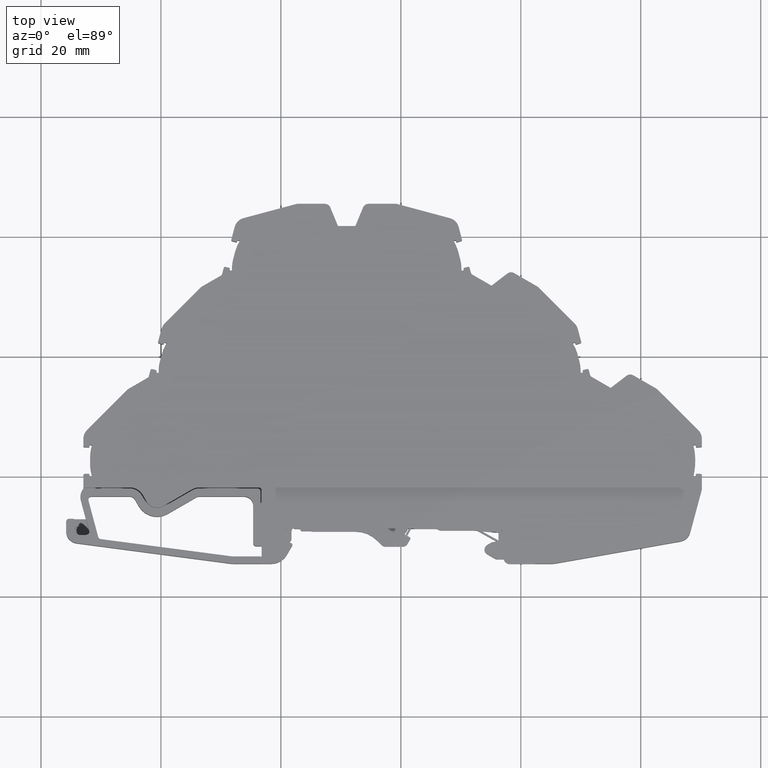
[diagram: clean part render]
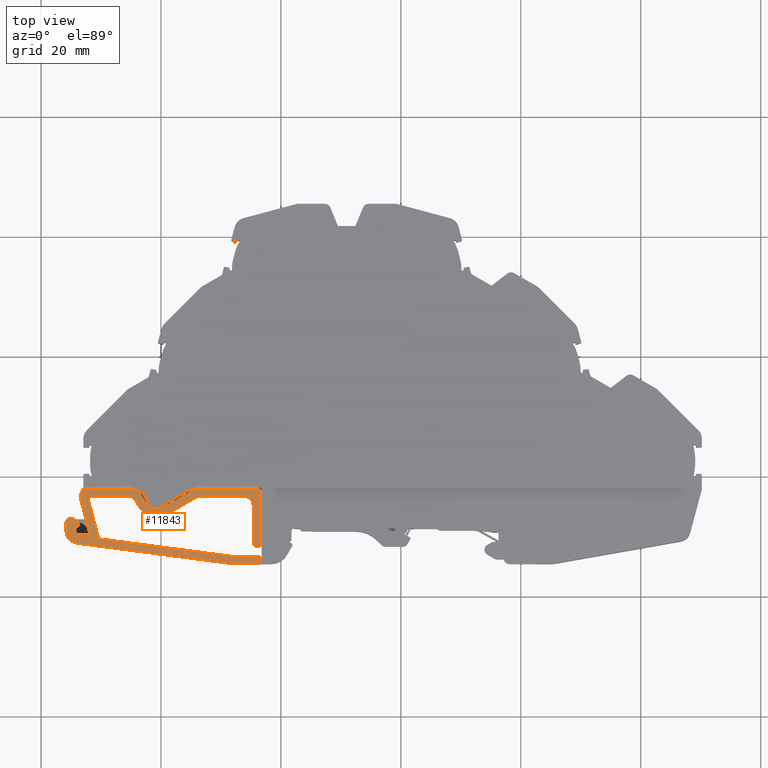
[diagram: same view with one face highlighted and labeled with its STEP entity id]
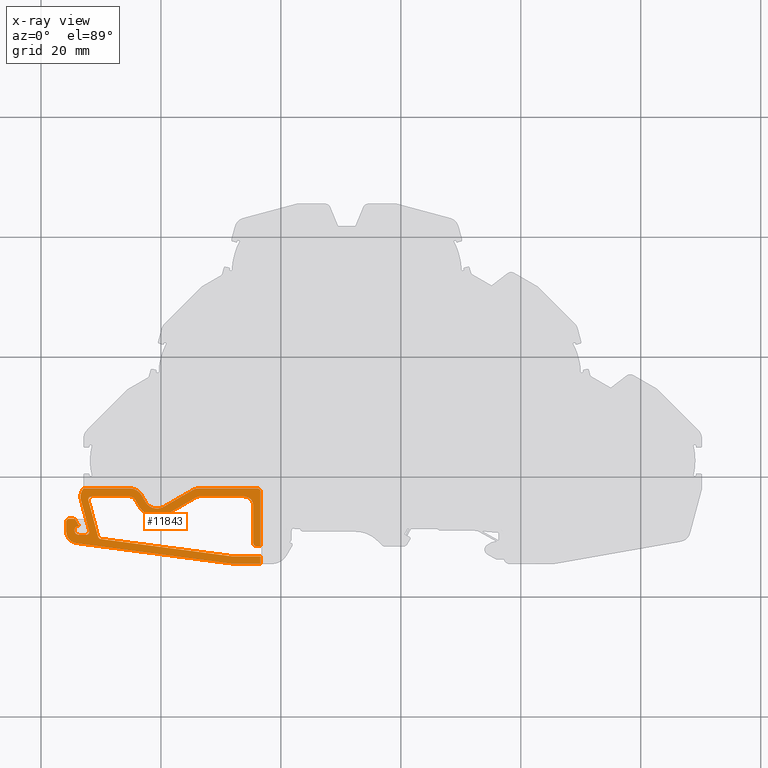
[diagram: x-ray of the same camera — body ghosted, the highlighted face saturated]
A machine part, top view. The second image highlights one B-rep face of the part: STEP entity #11843.
The next image is the same camera in x-ray: the body ghosted, the highlighted face saturated — about 0% of this face is hidden behind the body in this view.
In plain terms, the highlighted planar face has unit normal (0, 0, 1).
Its self-contained STEP definition (entity closure, byte-faithful):
#86 = AXIS2_PLACEMENT_3D ( 'NONE', #25047, #25037, #25041 ) ;
#3373 = EDGE_CURVE ( 'NONE', #7278, #7288, #14794, .T. ) ;
#3442 = EDGE_CURVE ( 'NONE', #7291, #7259, #14851, .T. ) ;
#6288 = EDGE_LOOP ( 'NONE', ( #13016, #6610, #6559, #6592, #6616, #6649, #6597, #6578, #6582, #6585, #6579, #6668, #6641, #6558, #6604, #6576, #6628, #6584, #6581, #6586, #6612, #6568, #6562, #6667, #6573, #6598, #6569, #6596, #6574, #6557, #6577, #6563, #6561, #6565, #6570, #6606, #6600, #6607, #6603, #6664, #6608, #6590, #6587 ) ) ;
#6557 = ORIENTED_EDGE ( 'NONE', *, *, #11028, .T. ) ;
#6558 = ORIENTED_EDGE ( 'NONE', *, *, #10947, .F. ) ;
#6559 = ORIENTED_EDGE ( 'NONE', *, *, #10971, .T. ) ;
#6561 = ORIENTED_EDGE ( 'NONE', *, *, #11039, .T. ) ;
#6562 = ORIENTED_EDGE ( 'NONE', *, *, #11052, .F. ) ;
#6563 = ORIENTED_EDGE ( 'NONE', *, *, #11011, .T. ) ;
#6565 = ORIENTED_EDGE ( 'NONE', *, *, #3373, .T. ) ;
#6568 = ORIENTED_EDGE ( 'NONE', *, *, #11058, .T. ) ;
#6569 = ORIENTED_EDGE ( 'NONE', *, *, #11047, .T. ) ;
#6570 = ORIENTED_EDGE ( 'NONE', *, *, #11008, .T. ) ;
#6573 = ORIENTED_EDGE ( 'NONE', *, *, #11044, .T. ) ;
#6574 = ORIENTED_EDGE ( 'NONE', *, *, #11041, .F. ) ;
#6576 = ORIENTED_EDGE ( 'NONE', *, *, #10948, .T. ) ;
#6577 = ORIENTED_EDGE ( 'NONE', *, *, #11042, .T. ) ;
#6578 = ORIENTED_EDGE ( 'NONE', *, *, #10982, .F. ) ;
#6579 = ORIENTED_EDGE ( 'NONE', *, *, #10965, .F. ) ;
#6581 = ORIENTED_EDGE ( 'NONE', *, *, #10998, .F. ) ;
#6582 = ORIENTED_EDGE ( 'NONE', *, *, #10941, .T. ) ;
#6584 = ORIENTED_EDGE ( 'NONE', *, *, #10972, .F. ) ;
#6585 = ORIENTED_EDGE ( 'NONE', *, *, #10939, .T. ) ;
#6586 = ORIENTED_EDGE ( 'NONE', *, *, #10937, .T. ) ;
#6587 = ORIENTED_EDGE ( 'NONE', *, *, #11021, .T. ) ;
#6590 = ORIENTED_EDGE ( 'NONE', *, *, #11033, .T. ) ;
#6592 = ORIENTED_EDGE ( 'NONE', *, *, #10976, .T. ) ;
#6596 = ORIENTED_EDGE ( 'NONE', *, *, #11054, .T. ) ;
#6597 = ORIENTED_EDGE ( 'NONE', *, *, #10944, .F. ) ;
#6598 = ORIENTED_EDGE ( 'NONE', *, *, #11004, .T. ) ;
#6600 = ORIENTED_EDGE ( 'NONE', *, *, #11031, .F. ) ;
#6603 = ORIENTED_EDGE ( 'NONE', *, *, #11009, .F. ) ;
#6604 = ORIENTED_EDGE ( 'NONE', *, *, #10981, .F. ) ;
#6606 = ORIENTED_EDGE ( 'NONE', *, *, #3442, .F. ) ;
#6607 = ORIENTED_EDGE ( 'NONE', *, *, #11016, .T. ) ;
#6608 = ORIENTED_EDGE ( 'NONE', *, *, #11045, .T. ) ;
#6610 = ORIENTED_EDGE ( 'NONE', *, *, #10969, .T. ) ;
#6612 = ORIENTED_EDGE ( 'NONE', *, *, #11059, .F. ) ;
#6616 = ORIENTED_EDGE ( 'NONE', *, *, #10961, .T. ) ;
#6628 = ORIENTED_EDGE ( 'NONE', *, *, #10962, .F. ) ;
#6641 = ORIENTED_EDGE ( 'NONE', *, *, #10946, .F. ) ;
#6649 = ORIENTED_EDGE ( 'NONE', *, *, #10950, .F. ) ;
#6664 = ORIENTED_EDGE ( 'NONE', *, *, #11006, .T. ) ;
#6667 = ORIENTED_EDGE ( 'NONE', *, *, #11017, .F. ) ;
#6668 = ORIENTED_EDGE ( 'NONE', *, *, #10955, .F. ) ;
#7259 = VERTEX_POINT ( 'NONE', #17937 ) ;
#7278 = VERTEX_POINT ( 'NONE', #17997 ) ;
#7288 = VERTEX_POINT ( 'NONE', #18036 ) ;
#7291 = VERTEX_POINT ( 'NONE', #18021 ) ;
#7775 = VERTEX_POINT ( 'NONE', #18549 ) ;
#7836 = VERTEX_POINT ( 'NONE', #18523 ) ;
#7838 = VERTEX_POINT ( 'NONE', #18623 ) ;
#7840 = VERTEX_POINT ( 'NONE', #18571 ) ;
#7841 = VERTEX_POINT ( 'NONE', #18616 ) ;
#7843 = VERTEX_POINT ( 'NONE', #18588 ) ;
#7849 = VERTEX_POINT ( 'NONE', #18606 ) ;
#7851 = VERTEX_POINT ( 'NONE', #18573 ) ;
#7853 = VERTEX_POINT ( 'NONE', #18613 ) ;
#7855 = VERTEX_POINT ( 'NONE', #18591 ) ;
#7857 = VERTEX_POINT ( 'NONE', #18603 ) ;
#7858 = VERTEX_POINT ( 'NONE', #18632 ) ;
#7859 = VERTEX_POINT ( 'NONE', #18601 ) ;
#7860 = VERTEX_POINT ( 'NONE', #18630 ) ;
#7861 = VERTEX_POINT ( 'NONE', #18582 ) ;
#7862 = VERTEX_POINT ( 'NONE', #18592 ) ;
#7863 = VERTEX_POINT ( 'NONE', #18599 ) ;
#7864 = VERTEX_POINT ( 'NONE', #18574 ) ;
#7866 = VERTEX_POINT ( 'NONE', #18609 ) ;
#7867 = VERTEX_POINT ( 'NONE', #18605 ) ;
#7869 = VERTEX_POINT ( 'NONE', #18620 ) ;
#7870 = VERTEX_POINT ( 'NONE', #18633 ) ;
#7871 = VERTEX_POINT ( 'NONE', #18634 ) ;
#7872 = VERTEX_POINT ( 'NONE', #18611 ) ;
#7873 = VERTEX_POINT ( 'NONE', #18584 ) ;
#7874 = VERTEX_POINT ( 'NONE', #18614 ) ;
#7880 = VERTEX_POINT ( 'NONE', #18617 ) ;
#7881 = VERTEX_POINT ( 'NONE', #18585 ) ;
#7883 = VERTEX_POINT ( 'NONE', #18594 ) ;
#7885 = VERTEX_POINT ( 'NONE', #18587 ) ;
#7887 = VERTEX_POINT ( 'NONE', #18622 ) ;
#7888 = VERTEX_POINT ( 'NONE', #18624 ) ;
#7892 = VERTEX_POINT ( 'NONE', #18580 ) ;
#7895 = VERTEX_POINT ( 'NONE', #18577 ) ;
#7896 = VERTEX_POINT ( 'NONE', #18578 ) ;
#7898 = VERTEX_POINT ( 'NONE', #18600 ) ;
#7900 = VERTEX_POINT ( 'NONE', #18596 ) ;
#7901 = VERTEX_POINT ( 'NONE', #18598 ) ;
#7950 = VERTEX_POINT ( 'NONE', #18694 ) ;
#10937 = EDGE_CURVE ( 'NONE', #7869, #7895, #20622, .T. ) ;
#10939 = EDGE_CURVE ( 'NONE', #7873, #7841, #20586, .T. ) ;
#10941 = EDGE_CURVE ( 'NONE', #7849, #7873, #21947, .T. ) ;
#10944 = EDGE_CURVE ( 'NONE', #7853, #7892, #21996, .T. ) ;
#10946 = EDGE_CURVE ( 'NONE', #7775, #7867, #21977, .T. ) ;
#10947 = EDGE_CURVE ( 'NONE', #7898, #7775, #20580, .T. ) ;
#10948 = EDGE_CURVE ( 'NONE', #7881, #7836, #20601, .T. ) ;
#10950 = EDGE_CURVE ( 'NONE', #7892, #7874, #22002, .T. ) ;
#10955 = EDGE_CURVE ( 'NONE', #7867, #7862, #20596, .T. ) ;
#10961 = EDGE_CURVE ( 'NONE', #7871, #7874, #22045, .T. ) ;
#10962 = EDGE_CURVE ( 'NONE', #7861, #7836, #22041, .T. ) ;
#10965 = EDGE_CURVE ( 'NONE', #7862, #7841, #22052, .T. ) ;
#10969 = EDGE_CURVE ( 'NONE', #7857, #7858, #20690, .T. ) ;
#10971 = EDGE_CURVE ( 'NONE', #7858, #7838, #22024, .T. ) ;
#10972 = EDGE_CURVE ( 'NONE', #7901, #7861, #20691, .T. ) ;
#10976 = EDGE_CURVE ( 'NONE', #7838, #7871, #20646, .T. ) ;
#10980 = EDGE_CURVE ( 'NONE', #7900, #7857, #22094, .T. ) ;
#10981 = EDGE_CURVE ( 'NONE', #7881, #7898, #22091, .T. ) ;
#10982 = EDGE_CURVE ( 'NONE', #7849, #7853, #20671, .T. ) ;
#10998 = EDGE_CURVE ( 'NONE', #7869, #7901, #22141, .T. ) ;
#11004 = EDGE_CURVE ( 'NONE', #7880, #7888, #22176, .T. ) ;
#11006 = EDGE_CURVE ( 'NONE', #7860, #7887, #22186, .T. ) ;
#11008 = EDGE_CURVE ( 'NONE', #7288, #7259, #22179, .T. ) ;
#11009 = EDGE_CURVE ( 'NONE', #7860, #7851, #20754, .T. ) ;
#11011 = EDGE_CURVE ( 'NONE', #7883, #7855, #22166, .T. ) ;
#11016 = EDGE_CURVE ( 'NONE', #7896, #7851, #22219, .T. ) ;
#11017 = EDGE_CURVE ( 'NONE', #7872, #7885, #22217, .T. ) ;
#11021 = EDGE_CURVE ( 'NONE', #7950, #7900, #20723, .T. ) ;
#11028 = EDGE_CURVE ( 'NONE', #7863, #7859, #22203, .T. ) ;
#11031 = EDGE_CURVE ( 'NONE', #7896, #7291, #20746, .T. ) ;
#11033 = EDGE_CURVE ( 'NONE', #7840, #7950, #22272, .T. ) ;
#11039 = EDGE_CURVE ( 'NONE', #7855, #7278, #20750, .T. ) ;
#11041 = EDGE_CURVE ( 'NONE', #7863, #7864, #20748, .T. ) ;
#11042 = EDGE_CURVE ( 'NONE', #7859, #7883, #20758, .T. ) ;
#11044 = EDGE_CURVE ( 'NONE', #7872, #7880, #20767, .T. ) ;
#11045 = EDGE_CURVE ( 'NONE', #7887, #7840, #20765, .T. ) ;
#11047 = EDGE_CURVE ( 'NONE', #7888, #7870, #20806, .T. ) ;
#11052 = EDGE_CURVE ( 'NONE', #7885, #7843, #22293, .T. ) ;
#11054 = EDGE_CURVE ( 'NONE', #7870, #7864, #22309, .T. ) ;
#11058 = EDGE_CURVE ( 'NONE', #7866, #7843, #20821, .T. ) ;
#11059 = EDGE_CURVE ( 'NONE', #7866, #7895, #22298, .T. ) ;
#11843 = ADVANCED_FACE ( 'NONE', ( #25068 ), #25064, .T. ) ;
#13016 = ORIENTED_EDGE ( 'NONE', *, *, #10980, .T. ) ;
#14740 = AXIS2_PLACEMENT_3D ( 'NONE', #16004, #16002, #15963 ) ;
#14794 = CIRCLE ( 'NONE', #14740, 2.000006238983387300 ) ;
#14821 = AXIS2_PLACEMENT_3D ( 'NONE', #16171, #16158, #16146 ) ;
#14851 = CIRCLE ( 'NONE', #14821, 0.4999999906125374100 ) ;
#15963 = DIRECTION ( 'NONE',  ( 1.000000000000000000, 0.0000000000000000000, 0.0000000000000000000 ) ) ;
#16002 = DIRECTION ( 'NONE',  ( 0.0000000000000000000, 0.0000000000000000000, 1.000000000000000000 ) ) ;
#16004 = CARTESIAN_POINT ( 'NONE',  ( 208.5687325803994800, 16.63790005086045200, 5.864999999999995800 ) ) ;
#16146 = DIRECTION ( 'NONE',  ( 1.000000000000000000, 0.0000000000000000000, 0.0000000000000000000 ) ) ;
#16158 = DIRECTION ( 'NONE',  ( 0.0000000000000000000, 0.0000000000000000000, 1.000000000000000000 ) ) ;
#16171 = CARTESIAN_POINT ( 'NONE',  ( 207.5627173941364800, 10.73246764365942100, 5.864999999999994900 ) ) ;
#17937 = CARTESIAN_POINT ( 'NONE',  ( 208.0456837820039800, 10.86186416139761900, 5.864999999999994900 ) ) ;
#17997 = CARTESIAN_POINT ( 'NONE',  ( 206.5687263414161000, 16.63790005086045200, 5.864999999999995800 ) ) ;
#18021 = CARTESIAN_POINT ( 'NONE',  ( 208.0627173847490200, 10.73246764365942100, 5.864999999999994900 ) ) ;
#18036 = CARTESIAN_POINT ( 'NONE',  ( 206.6368599254679700, 16.12032063474665100, 5.864999999999994900 ) ) ;
#18523 = CARTESIAN_POINT ( 'NONE',  ( 221.0952826277055000, 13.75818265866324100, 5.864999999999994900 ) ) ;
#18549 = CARTESIAN_POINT ( 'NONE',  ( 214.8047422702764800, 16.65365054067099800, 5.864999999999994900 ) ) ;
#18571 = CARTESIAN_POINT ( 'NONE',  ( 205.3310860712125000, 12.93240346183782000, 5.864999999999994900 ) ) ;
#18573 = CARTESIAN_POINT ( 'NONE',  ( 206.3125102571135000, 10.23246796505232000, 5.864999999999994900 ) ) ;
#18574 = CARTESIAN_POINT ( 'NONE',  ( 220.4452670665749800, 14.88401223435410100, 5.864999999999994900 ) ) ;
#18577 = CARTESIAN_POINT ( 'NONE',  ( 235.3775560752949900, 15.15365075230115200, 5.864999999999994900 ) ) ;
#18578 = CARTESIAN_POINT ( 'NONE',  ( 207.5627137739254800, 10.23246765306000100, 5.864999999999994900 ) ) ;
#18580 = CARTESIAN_POINT ( 'NONE',  ( 236.5775519414069900, 6.653654132609679200, 5.864999999999994900 ) ) ;
#18582 = CARTESIAN_POINT ( 'NONE',  ( 225.8782372434045000, 16.51967324165285300, 5.864999999999994900 ) ) ;
#18584 = CARTESIAN_POINT ( 'NONE',  ( 209.9609562340940600, 9.543205107083123200, 5.864999999999994900 ) ) ;
#18585 = CARTESIAN_POINT ( 'NONE',  ( 216.3141721027669700, 15.03924830687734900, 5.864999999999994900 ) ) ;
#18587 = CARTESIAN_POINT ( 'NONE',  ( 236.5775519414069900, 8.388774649715820400, 5.864999999999994900 ) ) ;
#18588 = CARTESIAN_POINT ( 'NONE',  ( 235.8775503535499900, 8.388774649715820400, 5.864999999999994900 ) ) ;
#18591 = CARTESIAN_POINT ( 'NONE',  ( 207.0624729436524900, 17.95365339502480100, 5.864999999999994900 ) ) ;
#18592 = CARTESIAN_POINT ( 'NONE',  ( 207.9049357748029900, 16.02425239980214800, 5.864999999999994900 ) ) ;
#18594 = CARTESIAN_POINT ( 'NONE',  ( 214.8047384005605000, 17.95365339502480100, 5.864999999999994900 ) ) ;
#18596 = CARTESIAN_POINT ( 'NONE',  ( 204.1886587459640100, 12.43240244855884000, 5.864999999999994900 ) ) ;
#18598 = CARTESIAN_POINT ( 'NONE',  ( 226.3782508702160200, 16.65365165461454900, 5.864999999999994900 ) ) ;
#18599 = CARTESIAN_POINT ( 'NONE',  ( 217.4399997513805000, 15.68925423248845200, 5.864999999999994900 ) ) ;
#18600 = CARTESIAN_POINT ( 'NONE',  ( 215.6707658792235000, 16.15365318763595300, 5.864999999999994900 ) ) ;
#18601 = CARTESIAN_POINT ( 'NONE',  ( 216.7965935278365100, 16.80365911324700100, 5.864999999999994900 ) ) ;
#18603 = CARTESIAN_POINT ( 'NONE',  ( 204.1886587459640100, 10.84674032556888400, 5.864999999999994900 ) ) ;
#18605 = CARTESIAN_POINT ( 'NONE',  ( 208.3878969584819700, 16.65365070145250200, 5.864999999999994900 ) ) ;
#18606 = CARTESIAN_POINT ( 'NONE',  ( 231.7143380641940100, 6.679318845271971000, 5.864999999999994900 ) ) ;
#18609 = CARTESIAN_POINT ( 'NONE',  ( 235.3775523067069700, 8.888774643417500300, 5.864999999999994900 ) ) ;
#18611 = CARTESIAN_POINT ( 'NONE',  ( 236.5775519414069900, 17.45365339502480100, 5.864999999999995800 ) ) ;
#18613 = CARTESIAN_POINT ( 'NONE',  ( 232.1059112750835100, 6.653654132609679200, 5.864999999999994900 ) ) ;
#18614 = CARTESIAN_POINT ( 'NONE',  ( 236.5775519414065100, 5.453654139633139900, 5.864999999999994900 ) ) ;
#18616 = CARTESIAN_POINT ( 'NONE',  ( 209.5432540790573300, 9.909526677594010700, 5.864999999999994900 ) ) ;
#18617 = CARTESIAN_POINT ( 'NONE',  ( 236.0775519414069900, 17.95365339502480100, 5.864999999999995800 ) ) ;
#18620 = CARTESIAN_POINT ( 'NONE',  ( 233.8775560752949900, 16.65365165461454900, 5.864999999999994900 ) ) ;
#18622 = CARTESIAN_POINT ( 'NONE',  ( 205.7640784681675000, 12.68242435899142100, 5.864999999999994900 ) ) ;
#18623 = CARTESIAN_POINT ( 'NONE',  ( 231.5576974045550000, 5.489585722834148900, 5.864999999999994900 ) ) ;
#18624 = CARTESIAN_POINT ( 'NONE',  ( 226.3782401042720100, 17.95365339502480100, 5.864999999999994900 ) ) ;
#18630 = CARTESIAN_POINT ( 'NONE',  ( 206.3125957567290000, 11.73246789892916000, 5.864999999999994900 ) ) ;
#18632 = CARTESIAN_POINT ( 'NONE',  ( 205.9276064086141400, 8.863850596621729100, 5.864999999999994900 ) ) ;
#18633 = CARTESIAN_POINT ( 'NONE',  ( 225.2282248565720100, 17.64550302038740200, 5.864999999999994900 ) ) ;
#18634 = CARTESIAN_POINT ( 'NONE',  ( 232.1059091984614900, 5.453654139633139900, 5.864999999999994900 ) ) ;
#18694 = CARTESIAN_POINT ( 'NONE',  ( 204.6886605678589900, 12.93240326027173900, 5.864999999999994900 ) ) ;
#20580 = CIRCLE ( 'NONE', #20631, 1.000000000000000900 ) ;
#20585 = AXIS2_PLACEMENT_3D ( 'NONE', #21952, #21959, #21970 ) ;
#20586 = CIRCLE ( 'NONE', #20600, 0.5000000000000004400 ) ;
#20596 = CIRCLE ( 'NONE', #20683, 0.4999963659023387600 ) ;
#20598 = VECTOR ( 'NONE', #21962, 999.9999999999998900 ) ;
#20600 = AXIS2_PLACEMENT_3D ( 'NONE', #21951, #21939, #21969 ) ;
#20601 = CIRCLE ( 'NONE', #20633, 3.500000705665557100 ) ;
#20603 = VECTOR ( 'NONE', #22000, 1000.000000000000000 ) ;
#20620 = VECTOR ( 'NONE', #22021, 1000.000000000000000 ) ;
#20622 = CIRCLE ( 'NONE', #20585, 1.500000000000001300 ) ;
#20628 = VECTOR ( 'NONE', #22018, 1000.000000000000000 ) ;
#20631 = AXIS2_PLACEMENT_3D ( 'NONE', #22022, #22006, #21993 ) ;
#20633 = AXIS2_PLACEMENT_3D ( 'NONE', #22015, #21991, #21994 ) ;
#20640 = VECTOR ( 'NONE', #22089, 1000.000000000000100 ) ;
#20646 = CIRCLE ( 'NONE', #20653, 4.200000113546070500 ) ;
#20649 = AXIS2_PLACEMENT_3D ( 'NONE', #22071, #22105, #22097 ) ;
#20653 = AXIS2_PLACEMENT_3D ( 'NONE', #22088, #22073, #22095 ) ;
#20654 = AXIS2_PLACEMENT_3D ( 'NONE', #22082, #22086, #22093 ) ;
#20656 = VECTOR ( 'NONE', #22029, 1000.000000000000100 ) ;
#20657 = VECTOR ( 'NONE', #22075, 1000.000000000000100 ) ;
#20671 = CIRCLE ( 'NONE', #20654, 2.999999629623300900 ) ;
#20672 = VECTOR ( 'NONE', #22074, 1000.000000000000000 ) ;
#20682 = VECTOR ( 'NONE', #22051, 1000.000000000000000 ) ;
#20683 = AXIS2_PLACEMENT_3D ( 'NONE', #21984, #21986, #21987 ) ;
#20686 = AXIS2_PLACEMENT_3D ( 'NONE', #22060, #22062, #22037 ) ;
#20690 = CIRCLE ( 'NONE', #20686, 2.000000000000001800 ) ;
#20691 = CIRCLE ( 'NONE', #20649, 0.9999999196216302600 ) ;
#20696 = VECTOR ( 'NONE', #22057, 1000.000000000000000 ) ;
#20702 = AXIS2_PLACEMENT_3D ( 'NONE', #22202, #22197, #22211 ) ;
#20707 = AXIS2_PLACEMENT_3D ( 'NONE', #22266, #22267, #22269 ) ;
#20712 = AXIS2_PLACEMENT_3D ( 'NONE', #22265, #22274, #22275 ) ;
#20717 = AXIS2_PLACEMENT_3D ( 'NONE', #22250, #22259, #22253 ) ;
#20720 = AXIS2_PLACEMENT_3D ( 'NONE', #22154, #22181, #22182 ) ;
#20723 = CIRCLE ( 'NONE', #20702, 0.5000012763415606600 ) ;
#20724 = VECTOR ( 'NONE', #22167, 1000.000000000000000 ) ;
#20725 = VECTOR ( 'NONE', #22273, 1000.000000000000000 ) ;
#20726 = VECTOR ( 'NONE', #22132, 1000.000000000000000 ) ;
#20728 = VECTOR ( 'NONE', #22172, 1000.000000000000100 ) ;
#20733 = VECTOR ( 'NONE', #22177, 1000.000000000000100 ) ;
#20734 = VECTOR ( 'NONE', #22184, 1000.000000000000000 ) ;
#20742 = VECTOR ( 'NONE', #22205, 1000.000000000000100 ) ;
#20744 = VECTOR ( 'NONE', #22204, 1000.000000000000000 ) ;
#20746 = CIRCLE ( 'NONE', #20717, 0.4999999906125374100 ) ;
#20748 = CIRCLE ( 'NONE', #20707, 2.200000000000007300 ) ;
#20750 = CIRCLE ( 'NONE', #20755, 2.000006238983387300 ) ;
#20754 = CIRCLE ( 'NONE', #20720, 0.7500000344233814800 ) ;
#20755 = AXIS2_PLACEMENT_3D ( 'NONE', #22243, #22244, #22240 ) ;
#20758 = CIRCLE ( 'NONE', #20712, 2.299999999999996300 ) ;
#20764 = VECTOR ( 'NONE', #22234, 1000.000000000000200 ) ;
#20765 = CIRCLE ( 'NONE', #20786, 0.5000000444488339500 ) ;
#20767 = CIRCLE ( 'NONE', #20785, 0.5000000000000004400 ) ;
#20779 = VECTOR ( 'NONE', #22370, 999.9999999999998900 ) ;
#20785 = AXIS2_PLACEMENT_3D ( 'NONE', #22291, #22306, #22301 ) ;
#20786 = AXIS2_PLACEMENT_3D ( 'NONE', #22320, #22305, #22287 ) ;
#20789 = AXIS2_PLACEMENT_3D ( 'NONE', #22317, #22303, #22319 ) ;
#20806 = CIRCLE ( 'NONE', #20789, 2.299999999999996300 ) ;
#20808 = VECTOR ( 'NONE', #22318, 1000.000000000000100 ) ;
#20812 = AXIS2_PLACEMENT_3D ( 'NONE', #22332, #22346, #22369 ) ;
#20821 = CIRCLE ( 'NONE', #20812, 0.4999999937054799800 ) ;
#20823 = VECTOR ( 'NONE', #22316, 1000.000000000000000 ) ;
#21939 = DIRECTION ( 'NONE',  ( -0.0000000000000000000, -0.0000000000000000000, -1.000000000000000000 ) ) ;
#21947 = LINE ( 'NONE', #21954, #20598 ) ;
#21951 = CARTESIAN_POINT ( 'NONE',  ( 210.0262193125731500, 10.03892754009118200, 5.864999999999994900 ) ) ;
#21952 = CARTESIAN_POINT ( 'NONE',  ( 233.8775560752949900, 15.15365165461455100, 5.864999999999994900 ) ) ;
#21954 = CARTESIAN_POINT ( 'NONE',  ( 265.7657761329153300, 2.196363209151605700, 5.864999999999995800 ) ) ;
#21959 = DIRECTION ( 'NONE',  ( -0.0000000000000000000, -0.0000000000000000000, -1.000000000000000000 ) ) ;
#21962 = DIRECTION ( 'NONE',  ( -0.9914448660161236900, 0.1305261569581771800, 0.0000000000000000000 ) ) ;
#21969 = DIRECTION ( 'NONE',  ( 1.000000000000000000, 0.0000000000000000000, 0.0000000000000000000 ) ) ;
#21970 = DIRECTION ( 'NONE',  ( 1.000000000000000000, -3.469446951953611000E-015, 0.0000000000000000000 ) ) ;
#21977 = LINE ( 'NONE', #22020, #20620 ) ;
#21984 = CARTESIAN_POINT ( 'NONE',  ( 208.3878969584819700, 16.15365433555015100, 5.864999999999994900 ) ) ;
#21986 = DIRECTION ( 'NONE',  ( 0.0000000000000000000, 0.0000000000000000000, 1.000000000000000000 ) ) ;
#21987 = DIRECTION ( 'NONE',  ( 1.000000000000000000, 0.0000000000000000000, 0.0000000000000000000 ) ) ;
#21988 = CARTESIAN_POINT ( 'NONE',  ( 256.4401436719745100, 6.653654132609681900, 5.864999999999995800 ) ) ;
#21991 = DIRECTION ( 'NONE',  ( 0.0000000000000000000, 0.0000000000000000000, 1.000000000000000000 ) ) ;
#21993 = DIRECTION ( 'NONE',  ( 1.000000000000000000, 0.0000000000000000000, 0.0000000000000000000 ) ) ;
#21994 = DIRECTION ( 'NONE',  ( 1.000000000000000000, 0.0000000000000000000, 0.0000000000000000000 ) ) ;
#21996 = LINE ( 'NONE', #21988, #20628 ) ;
#22000 = DIRECTION ( 'NONE',  ( -1.549024425817635100E-014, -1.000000000000000000, 0.0000000000000000000 ) ) ;
#22002 = LINE ( 'NONE', #22011, #20603 ) ;
#22006 = DIRECTION ( 'NONE',  ( 0.0000000000000000000, 0.0000000000000000000, 1.000000000000000000 ) ) ;
#22011 = CARTESIAN_POINT ( 'NONE',  ( 236.5775519414055200, -68.63886737773869100, 5.864999999999995800 ) ) ;
#22015 = CARTESIAN_POINT ( 'NONE',  ( 219.3452566032234800, 16.78925736135439800, 5.864999999999994900 ) ) ;
#22018 = DIRECTION ( 'NONE',  ( 1.000000000000000000, 0.0000000000000000000, 0.0000000000000000000 ) ) ;
#22020 = CARTESIAN_POINT ( 'NONE',  ( 256.4401462343539000, 16.65364925785457800, 5.864999999999995800 ) ) ;
#22021 = DIRECTION ( 'NONE',  ( -0.9999999999999995600, 3.004225391225513600E-008, 0.0000000000000000000 ) ) ;
#22022 = CARTESIAN_POINT ( 'NONE',  ( 214.8047420036700100, 15.65365054067105200, 5.864999999999994900 ) ) ;
#22024 = LINE ( 'NONE', #22030, #20640 ) ;
#22029 = DIRECTION ( 'NONE',  ( 0.2588017249943114200, -0.9659304670316434200, 0.0000000000000000000 ) ) ;
#22030 = CARTESIAN_POINT ( 'NONE',  ( 265.6091454494504100, 1.006628363935682600, 5.864999999999995800 ) ) ;
#22033 = CARTESIAN_POINT ( 'NONE',  ( 256.4401436719745100, 5.453654139633140800, 5.864999999999995800 ) ) ;
#22037 = DIRECTION ( 'NONE',  ( 1.000000000000000000, 0.0000000000000000000, 0.0000000000000000000 ) ) ;
#22041 = LINE ( 'NONE', #22046, #20696 ) ;
#22045 = LINE ( 'NONE', #22033, #20682 ) ;
#22046 = CARTESIAN_POINT ( 'NONE',  ( 211.9243911072635500, 8.463269240878327400, 5.864999999999995800 ) ) ;
#22051 = DIRECTION ( 'NONE',  ( 1.000000000000000000, 0.0000000000000000000, 0.0000000000000000000 ) ) ;
#22052 = LINE ( 'NONE', #22064, #20656 ) ;
#22057 = DIRECTION ( 'NONE',  ( -0.8660214484722890100, -0.5000068507390259500, 0.0000000000000000000 ) ) ;
#22060 = CARTESIAN_POINT ( 'NONE',  ( 206.1886587459640100, 10.84674032556889000, 5.864999999999994900 ) ) ;
#22062 = DIRECTION ( 'NONE',  ( 0.0000000000000000000, 0.0000000000000000000, 1.000000000000000000 ) ) ;
#22064 = CARTESIAN_POINT ( 'NONE',  ( 232.3202083033878000, -75.10132103584175000, 5.864999999999995800 ) ) ;
#22068 = CARTESIAN_POINT ( 'NONE',  ( 204.1886587459640100, -68.63886737773900400, 5.864999999999995800 ) ) ;
#22071 = CARTESIAN_POINT ( 'NONE',  ( 226.3782438326495000, 15.65365173501764900, 5.864999999999994900 ) ) ;
#22073 = DIRECTION ( 'NONE',  ( 0.0000000000000000000, 0.0000000000000000000, 1.000000000000000000 ) ) ;
#22074 = DIRECTION ( 'NONE',  ( 0.0000000000000000000, -1.000000000000000000, 0.0000000000000000000 ) ) ;
#22075 = DIRECTION ( 'NONE',  ( -0.5000024861834988500, 0.8660239683809679600, 0.0000000000000000000 ) ) ;
#22082 = CARTESIAN_POINT ( 'NONE',  ( 232.1059112750835100, 9.653653762232970300, 5.864999999999994900 ) ) ;
#22086 = DIRECTION ( 'NONE',  ( 0.0000000000000000000, 0.0000000000000000000, 1.000000000000000000 ) ) ;
#22088 = CARTESIAN_POINT ( 'NONE',  ( 232.1059074267000100, 9.653654253178830300, 5.864999999999994900 ) ) ;
#22089 = DIRECTION ( 'NONE',  ( 0.9914448644735828200, -0.1305261686749406000, 0.0000000000000000000 ) ) ;
#22091 = LINE ( 'NONE', #22101, #20657 ) ;
#22093 = DIRECTION ( 'NONE',  ( 1.000000000000000000, 0.0000000000000000000, 0.0000000000000000000 ) ) ;
#22094 = LINE ( 'NONE', #22068, #20672 ) ;
#22095 = DIRECTION ( 'NONE',  ( 1.000000000000000000, 0.0000000000000000000, 0.0000000000000000000 ) ) ;
#22097 = DIRECTION ( 'NONE',  ( 1.000000000000000000, 0.0000000000000000000, 0.0000000000000000000 ) ) ;
#22101 = CARTESIAN_POINT ( 'NONE',  ( 262.5795718286525500, -65.09424337867942300, 5.864999999999995800 ) ) ;
#22105 = DIRECTION ( 'NONE',  ( 0.0000000000000000000, 0.0000000000000000000, 1.000000000000000000 ) ) ;
#22132 = DIRECTION ( 'NONE',  ( -1.000000000000000000, 0.0000000000000000000, 0.0000000000000000000 ) ) ;
#22141 = LINE ( 'NONE', #22148, #20726 ) ;
#22148 = CARTESIAN_POINT ( 'NONE',  ( 256.4401436719745100, 16.65365165461454900, 5.864999999999995800 ) ) ;
#22154 = CARTESIAN_POINT ( 'NONE',  ( 206.3122377294609700, 10.98246794996148000, 5.864999999999994900 ) ) ;
#22166 = LINE ( 'NONE', #22180, #20724 ) ;
#22167 = DIRECTION ( 'NONE',  ( -1.000000000000000000, -1.558772962230045000E-015, 0.0000000000000000000 ) ) ;
#22172 = DIRECTION ( 'NONE',  ( -0.5000407972669380600, 0.8660018481900860800, 0.0000000000000000000 ) ) ;
#22176 = LINE ( 'NONE', #22190, #20734 ) ;
#22177 = DIRECTION ( 'NONE',  ( 0.2587889993887694300, -0.9659338765129627000, 0.0000000000000000000 ) ) ;
#22179 = LINE ( 'NONE', #22187, #20733 ) ;
#22180 = CARTESIAN_POINT ( 'NONE',  ( 256.4401436719744000, 17.95365339502490100, 5.864999999999995800 ) ) ;
#22181 = DIRECTION ( 'NONE',  ( 0.0000000000000000000, 0.0000000000000000000, 1.000000000000000000 ) ) ;
#22182 = DIRECTION ( 'NONE',  ( 1.000000000000000000, 0.0000000000000000000, 0.0000000000000000000 ) ) ;
#22183 = CARTESIAN_POINT ( 'NONE',  ( 253.6502298916261100, -70.24980009566226600, 5.864999999999995800 ) ) ;
#22184 = DIRECTION ( 'NONE',  ( -1.000000000000000000, -1.097628740143440000E-015, 0.0000000000000000000 ) ) ;
#22186 = LINE ( 'NONE', #22183, #20728 ) ;
#22187 = CARTESIAN_POINT ( 'NONE',  ( 231.1597865121344700, -75.41187585447184500, 5.864999999999995800 ) ) ;
#22190 = CARTESIAN_POINT ( 'NONE',  ( 256.4401436719744000, 17.95365339502484800, 5.864999999999995800 ) ) ;
#22197 = DIRECTION ( 'NONE',  ( 0.0000000000000000000, 0.0000000000000000000, 1.000000000000000000 ) ) ;
#22200 = CARTESIAN_POINT ( 'NONE',  ( 256.4401633545675200, 10.23245545553479200, 5.864999999999995800 ) ) ;
#22202 = CARTESIAN_POINT ( 'NONE',  ( 204.6886600223049900, 12.43240198393047900, 5.864999999999994900 ) ) ;
#22203 = LINE ( 'NONE', #22213, #20742 ) ;
#22204 = DIRECTION ( 'NONE',  ( -1.549024425817635100E-014, -1.000000000000000000, 0.0000000000000000000 ) ) ;
#22205 = DIRECTION ( 'NONE',  ( -0.5000024861835498100, 0.8660239683809386500, 0.0000000000000000000 ) ) ;
#22211 = DIRECTION ( 'NONE',  ( 1.000000000000000000, 0.0000000000000000000, 0.0000000000000000000 ) ) ;
#22213 = CARTESIAN_POINT ( 'NONE',  ( 263.7054015212044600, -64.44424099323963200, 5.864999999999995800 ) ) ;
#22216 = CARTESIAN_POINT ( 'NONE',  ( 236.5775519414055200, -68.63886737773869100, 5.864999999999995800 ) ) ;
#22217 = LINE ( 'NONE', #22216, #20744 ) ;
#22219 = LINE ( 'NONE', #22200, #20764 ) ;
#22234 = DIRECTION ( 'NONE',  ( -0.9999999999999688000, 2.495532260721409600E-007, 0.0000000000000000000 ) ) ;
#22240 = DIRECTION ( 'NONE',  ( 1.000000000000000000, 0.0000000000000000000, 0.0000000000000000000 ) ) ;
#22242 = CARTESIAN_POINT ( 'NONE',  ( 256.4401180783380000, 12.93241949770090900, 5.864999999999995800 ) ) ;
#22243 = CARTESIAN_POINT ( 'NONE',  ( 208.5687325803994800, 16.63790005086045200, 5.864999999999995800 ) ) ;
#22244 = DIRECTION ( 'NONE',  ( 0.0000000000000000000, 0.0000000000000000000, 1.000000000000000000 ) ) ;
#22250 = CARTESIAN_POINT ( 'NONE',  ( 207.5627173941364800, 10.73246764365942100, 5.864999999999994900 ) ) ;
#22253 = DIRECTION ( 'NONE',  ( 1.000000000000000000, 0.0000000000000000000, 0.0000000000000000000 ) ) ;
#22259 = DIRECTION ( 'NONE',  ( 0.0000000000000000000, 0.0000000000000000000, 1.000000000000000000 ) ) ;
#22265 = CARTESIAN_POINT ( 'NONE',  ( 214.8047384005605000, 15.65365339502480100, 5.864999999999994900 ) ) ;
#22266 = CARTESIAN_POINT ( 'NONE',  ( 219.3452524818185100, 16.78925970209224900, 5.864999999999994900 ) ) ;
#22267 = DIRECTION ( 'NONE',  ( 0.0000000000000000000, 0.0000000000000000000, 1.000000000000000000 ) ) ;
#22269 = DIRECTION ( 'NONE',  ( 1.000000000000000000, 0.0000000000000000000, 0.0000000000000000000 ) ) ;
#22272 = LINE ( 'NONE', #22242, #20725 ) ;
#22273 = DIRECTION ( 'NONE',  ( -0.9999999999999508200, -3.137579100090939700E-007, 0.0000000000000000000 ) ) ;
#22274 = DIRECTION ( 'NONE',  ( 0.0000000000000000000, 0.0000000000000000000, 1.000000000000000000 ) ) ;
#22275 = DIRECTION ( 'NONE',  ( 1.000000000000000000, 0.0000000000000000000, 0.0000000000000000000 ) ) ;
#22284 = CARTESIAN_POINT ( 'NONE',  ( 256.4401436719745100, 8.388774649715824000, 5.864999999999995800 ) ) ;
#22285 = CARTESIAN_POINT ( 'NONE',  ( 235.3775056705628100, -68.63885470767235100, 5.864999999999995800 ) ) ;
#22287 = DIRECTION ( 'NONE',  ( 1.000000000000000000, 0.0000000000000000000, 0.0000000000000000000 ) ) ;
#22291 = CARTESIAN_POINT ( 'NONE',  ( 236.0775519414069900, 17.45365339502480100, 5.864999999999994900 ) ) ;
#22293 = LINE ( 'NONE', #22284, #20823 ) ;
#22298 = LINE ( 'NONE', #22285, #20779 ) ;
#22301 = DIRECTION ( 'NONE',  ( 1.000000000000000000, 0.0000000000000000000, 0.0000000000000000000 ) ) ;
#22303 = DIRECTION ( 'NONE',  ( 0.0000000000000000000, 0.0000000000000000000, 1.000000000000000000 ) ) ;
#22305 = DIRECTION ( 'NONE',  ( 0.0000000000000000000, 0.0000000000000000000, 1.000000000000000000 ) ) ;
#22306 = DIRECTION ( 'NONE',  ( 0.0000000000000000000, 0.0000000000000000000, 1.000000000000000000 ) ) ;
#22309 = LINE ( 'NONE', #22321, #20808 ) ;
#22316 = DIRECTION ( 'NONE',  ( -1.000000000000000000, 0.0000000000000000000, 0.0000000000000000000 ) ) ;
#22317 = CARTESIAN_POINT ( 'NONE',  ( 226.3782401042720100, 15.65365339502480100, 5.864999999999994900 ) ) ;
#22318 = DIRECTION ( 'NONE',  ( -0.8660215762446127300, -0.5000066294348468600, 0.0000000000000000000 ) ) ;
#22319 = DIRECTION ( 'NONE',  ( 1.000000000000000000, 0.0000000000000000000, 0.0000000000000000000 ) ) ;
#22320 = CARTESIAN_POINT ( 'NONE',  ( 205.3310778062244700, 12.43240341745730100, 5.864999999999994900 ) ) ;
#22321 = CARTESIAN_POINT ( 'NONE',  ( 211.2743984419123800, 9.589115160436117300, 5.864999999999995800 ) ) ;
#22332 = CARTESIAN_POINT ( 'NONE',  ( 235.8775523004125000, 8.888774643417500300, 5.864999999999994900 ) ) ;
#22346 = DIRECTION ( 'NONE',  ( 0.0000000000000000000, 0.0000000000000000000, 1.000000000000000000 ) ) ;
#22369 = DIRECTION ( 'NONE',  ( 1.000000000000000000, 0.0000000000000000000, 0.0000000000000000000 ) ) ;
#22370 = DIRECTION ( 'NONE',  ( 6.015422495056100900E-007, 0.9999999999998191400, 0.0000000000000000000 ) ) ;
#25037 = DIRECTION ( 'NONE',  ( 0.0000000000000000000, 0.0000000000000000000, 1.000000000000000000 ) ) ;
#25041 = DIRECTION ( 'NONE',  ( 1.000000000000000000, 0.0000000000000000000, 0.0000000000000000000 ) ) ;
#25047 = CARTESIAN_POINT ( 'NONE',  ( 256.4401436719745100, -68.63886737773900400, 5.864999999999995800 ) ) ;
#25064 = PLANE ( 'NONE',  #86 ) ;
#25068 = FACE_OUTER_BOUND ( 'NONE', #6288, .T. ) ;